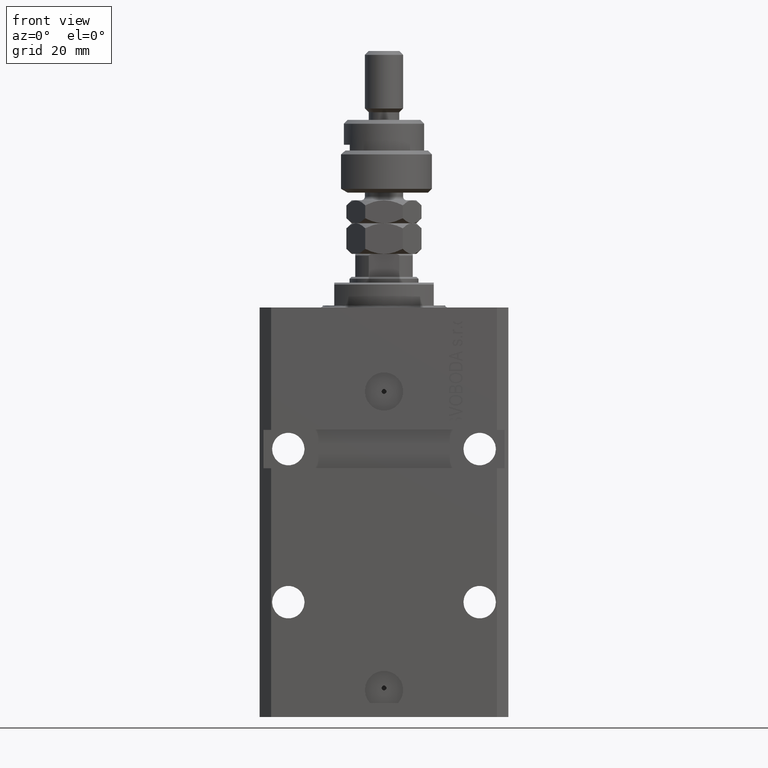
[diagram: clean part render]
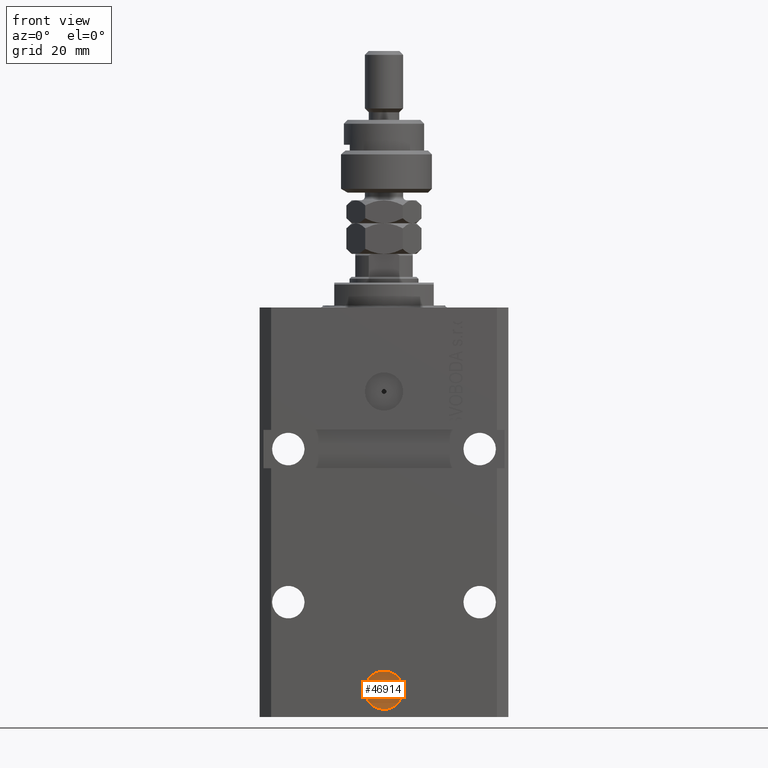
[diagram: same view with one face highlighted and labeled with its STEP entity id]
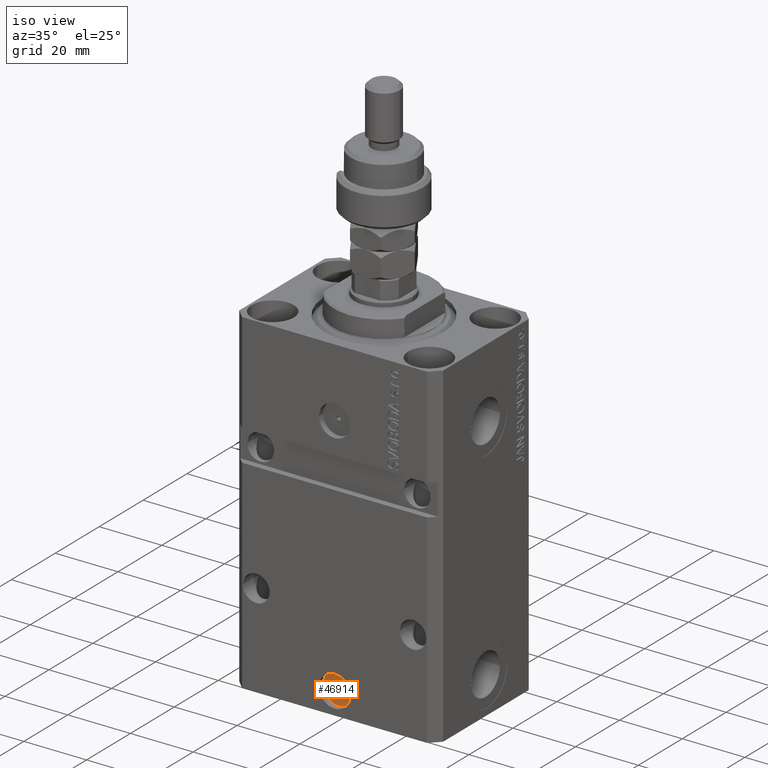
[diagram: same view with one face highlighted and labeled with its STEP entity id]
A machine part, front view. The second image highlights one B-rep face of the part: STEP entity #46914.
A second angle (iso view) of the same face is appended — the face is thin or edge-on in the first view.
In plain terms, the highlighted planar face has unit normal (0, -1, 0).
Its self-contained STEP definition (entity closure, byte-faithful):
#3065 = FACE_OUTER_BOUND ( 'NONE', #31150, .T. ) ;
#3552 = DIRECTION ( 'NONE',  ( 1.000000000000000000, 1.176083712526788232E-16, 0.000000000000000000 ) ) ;
#6798 = EDGE_CURVE ( 'NONE', #42740, #45678, #13487, .T. ) ;
#6940 = DIRECTION ( 'NONE',  ( 1.000000000000000000, 0.000000000000000000, 0.000000000000000000 ) ) ;
#6978 = VERTEX_POINT ( 'NONE', #29313 ) ;
#7199 = PLANE ( 'NONE',  #36988 ) ;
#7659 = CARTESIAN_POINT ( 'NONE',  ( -0.6250000000000013323, -20.59999999999949694, -99.47499999999999432 ) ) ;
#10782 = CARTESIAN_POINT ( 'NONE',  ( 2.422732447805124080E-15, -20.59999999999949694, -99.99999999999998579 ) ) ;
#13487 = CIRCLE ( 'NONE', #22095, 5.000000000000006217 ) ;
#15075 = DIRECTION ( 'NONE',  ( 1.000000000000000000, 0.000000000000000000, 0.000000000000000000 ) ) ;
#16280 = AXIS2_PLACEMENT_3D ( 'NONE', #32365, #40400, #6940 ) ;
#17709 = ORIENTED_EDGE ( 'NONE', *, *, #24295, .F. ) ;
#18707 = CARTESIAN_POINT ( 'NONE',  ( -5.000000000000003553, -20.59999999999949694, -99.99999999999998579 ) ) ;
#21079 = AXIS2_PLACEMENT_3D ( 'NONE', #37343, #44660, #15075 ) ;
#22095 = AXIS2_PLACEMENT_3D ( 'NONE', #10782, #47212, #36704 ) ;
#23378 = ORIENTED_EDGE ( 'NONE', *, *, #35950, .T. ) ;
#23856 = EDGE_LOOP ( 'NONE', ( #17709, #47406 ) ) ;
#24295 = EDGE_CURVE ( 'NONE', #6978, #42715, #46741, .T. ) ;
#24360 = DIRECTION ( 'NONE',  ( 1.176083712526788232E-16, -1.000000000000000000, 0.000000000000000000 ) ) ;
#26232 = CARTESIAN_POINT ( 'NONE',  ( 5.000000000000008882, -20.59999999999949694, -99.99999999999998579 ) ) ;
#28727 = ORIENTED_EDGE ( 'NONE', *, *, #6798, .T. ) ;
#29313 = CARTESIAN_POINT ( 'NONE',  ( 0.6250000000000061062, -20.59999999999949694, -99.47499999999999432 ) ) ;
#31150 = EDGE_LOOP ( 'NONE', ( #28727, #23378 ) ) ;
#31238 = CIRCLE ( 'NONE', #35165, 0.6250000000000036637 ) ;
#32365 = CARTESIAN_POINT ( 'NONE',  ( 2.422732447805124475E-15, -20.59999999999949694, -99.47499999999999432 ) ) ;
#32873 = CARTESIAN_POINT ( 'NONE',  ( 2.422732447805124080E-15, -20.59999999999949694, -99.99999999999998579 ) ) ;
#35165 = AXIS2_PLACEMENT_3D ( 'NONE', #39022, #24360, #38777 ) ;
#35950 = EDGE_CURVE ( 'NONE', #45678, #42740, #44522, .T. ) ;
#36007 = EDGE_CURVE ( 'NONE', #42715, #6978, #31238, .T. ) ;
#36534 = FACE_BOUND ( 'NONE', #23856, .T. ) ;
#36704 = DIRECTION ( 'NONE',  ( 1.000000000000000000, 0.000000000000000000, 0.000000000000000000 ) ) ;
#36988 = AXIS2_PLACEMENT_3D ( 'NONE', #32873, #37018, #3552 ) ;
#37018 = DIRECTION ( 'NONE',  ( 1.176083712526788232E-16, -1.000000000000000000, 0.000000000000000000 ) ) ;
#37343 = CARTESIAN_POINT ( 'NONE',  ( 2.422732447805124080E-15, -20.59999999999949694, -99.99999999999998579 ) ) ;
#38777 = DIRECTION ( 'NONE',  ( 1.000000000000000000, 0.000000000000000000, 0.000000000000000000 ) ) ;
#39022 = CARTESIAN_POINT ( 'NONE',  ( 2.422732447805124475E-15, -20.59999999999949694, -99.47499999999999432 ) ) ;
#40400 = DIRECTION ( 'NONE',  ( 1.176083712526788232E-16, -1.000000000000000000, 0.000000000000000000 ) ) ;
#42715 = VERTEX_POINT ( 'NONE', #7659 ) ;
#42740 = VERTEX_POINT ( 'NONE', #26232 ) ;
#44522 = CIRCLE ( 'NONE', #21079, 5.000000000000006217 ) ;
#44660 = DIRECTION ( 'NONE',  ( 1.176083712526788232E-16, -1.000000000000000000, 0.000000000000000000 ) ) ;
#45678 = VERTEX_POINT ( 'NONE', #18707 ) ;
#46741 = CIRCLE ( 'NONE', #16280, 0.6250000000000036637 ) ;
#46914 = ADVANCED_FACE ( 'NONE', ( #36534, #3065 ), #7199, .T. ) ;
#47212 = DIRECTION ( 'NONE',  ( 1.176083712526788232E-16, -1.000000000000000000, 0.000000000000000000 ) ) ;
#47406 = ORIENTED_EDGE ( 'NONE', *, *, #36007, .F. ) ;